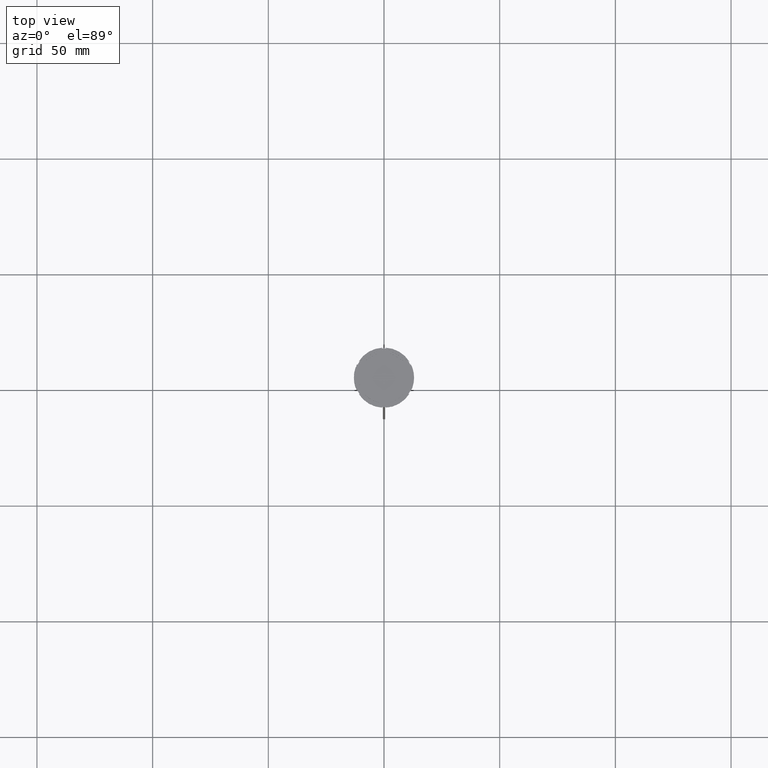
[diagram: clean part render]
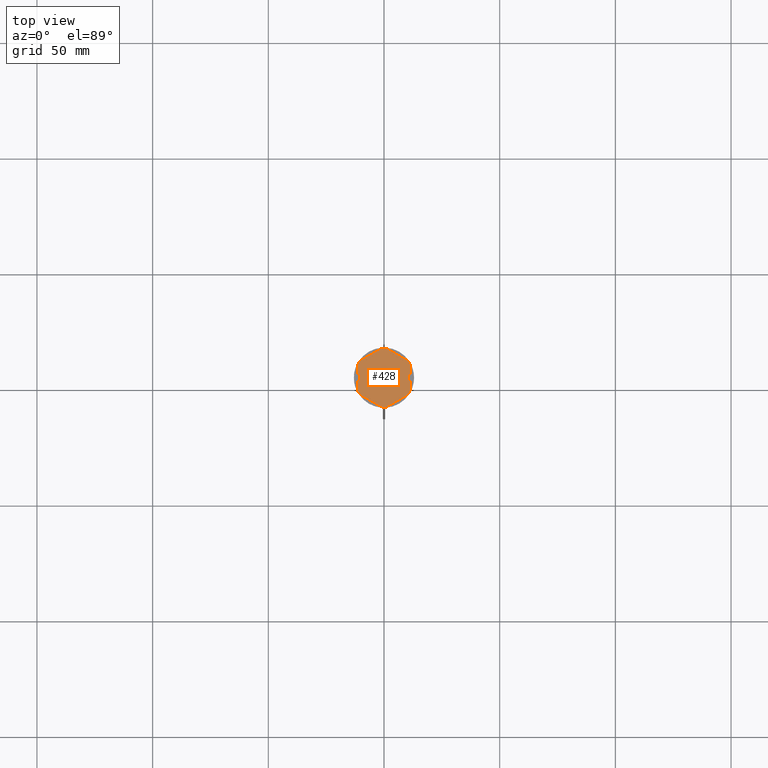
[diagram: same view with one face highlighted and labeled with its STEP entity id]
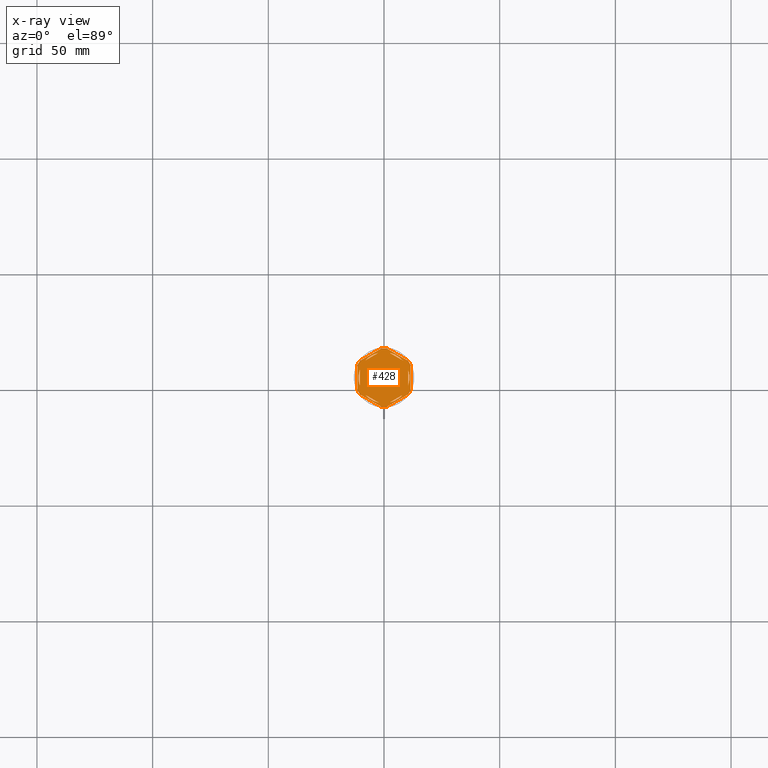
[diagram: x-ray of the same camera — body ghosted, the highlighted face saturated]
A machine part, top view. The second image highlights one B-rep face of the part: STEP entity #428.
The next image is the same camera in x-ray: the body ghosted, the highlighted face saturated — about 0% of this face is hidden behind the body in this view.
In plain terms, the highlighted planar face has unit normal (0, 0, 1).
Its self-contained STEP definition (entity closure, byte-faithful):
#3 = VECTOR ( 'NONE', #1508, 1000.000000000000000 ) ;
#47 = DIRECTION ( 'NONE',  ( 1.000000000000000000, 0.000000000000000000, 0.000000000000000000 ) ) ;
#53 = EDGE_CURVE ( 'NONE', #2732, #2321, #2658, .T. ) ;
#56 = CARTESIAN_POINT ( 'NONE',  ( 11.49999999999999822, -6.639528095680694797, -1.000000000000000000 ) ) ;
#63 = CIRCLE ( 'NONE', #1976, 12.69999999999999929 ) ;
#65 = CARTESIAN_POINT ( 'NONE',  ( 10.49999999999999467, 3.278719262151012170, -1.000000000000000888 ) ) ;
#88 = CARTESIAN_POINT ( 'NONE',  ( 1.083095244168774673, -12.65373086058253982, -1.000000000000000000 ) ) ;
#92 = CARTESIAN_POINT ( 'NONE',  ( 0.000000000000000000, 0.000000000000000000, -1.000000000000000000 ) ) ;
#107 = VERTEX_POINT ( 'NONE', #1549 ) ;
#109 = CIRCLE ( 'NONE', #1291, 11.00000000000000000 ) ;
#111 = CIRCLE ( 'NONE', #359, 11.00000000000000000 ) ;
#129 = EDGE_CURVE ( 'NONE', #1032, #1472, #464, .T. ) ;
#134 = ORIENTED_EDGE ( 'NONE', *, *, #2264, .T. ) ;
#136 = CARTESIAN_POINT ( 'NONE',  ( 0.000000000000000000, 0.000000000000000000, -1.000000000000000000 ) ) ;
#143 = PLANE ( 'NONE',  #2436 ) ;
#147 = CARTESIAN_POINT ( 'NONE',  ( 0.000000000000000000, 0.000000000000000000, -1.000000000000000000 ) ) ;
#204 = VERTEX_POINT ( 'NONE', #2258 ) ;
#215 = VERTEX_POINT ( 'NONE', #2228 ) ;
#219 = DIRECTION ( 'NONE',  ( -0.8660254037844387076, -0.4999999999999999445, 0.000000000000000000 ) ) ;
#230 = CARTESIAN_POINT ( 'NONE',  ( 11.49999999999999822, -5.388877434122996135, -1.000000000000000000 ) ) ;
#231 = VERTEX_POINT ( 'NONE', #508 ) ;
#237 = VECTOR ( 'NONE', #705, 999.9999999999998863 ) ;
#245 = CIRCLE ( 'NONE', #1647, 12.69999999999999929 ) ;
#267 = CARTESIAN_POINT ( 'NONE',  ( 0.000000000000000000, 0.000000000000000000, -1.000000000000000000 ) ) ;
#284 = DIRECTION ( 'NONE',  ( 0.000000000000000000, 0.000000000000000000, 1.000000000000000000 ) ) ;
#285 = EDGE_LOOP ( 'NONE', ( #2693, #450 ) ) ;
#313 = DIRECTION ( 'NONE',  ( -1.430775808321104180E-16, -1.000000000000000000, 0.000000000000000000 ) ) ;
#329 = CARTESIAN_POINT ( 'NONE',  ( -11.50000000000000000, 6.639528095680691244, -1.000000000000000000 ) ) ;
#339 = DIRECTION ( 'NONE',  ( -0.000000000000000000, -0.000000000000000000, -1.000000000000000000 ) ) ;
#359 = AXIS2_PLACEMENT_3D ( 'NONE', #136, #2595, #2137 ) ;
#366 = VERTEX_POINT ( 'NONE', #88 ) ;
#392 = EDGE_CURVE ( 'NONE', #366, #620, #1044, .T. ) ;
#401 = CARTESIAN_POINT ( 'NONE',  ( -10.41690475583121334, -7.264853426459548125, -1.000000000000000000 ) ) ;
#408 = CARTESIAN_POINT ( 'NONE',  ( 0.000000000000000000, 0.000000000000000000, -1.000000000000000000 ) ) ;
#422 = DIRECTION ( 'NONE',  ( -0.000000000000000000, -0.000000000000000000, -1.000000000000000000 ) ) ;
#428 = ADVANCED_FACE ( 'NONE', ( #1771, #2656, #2433, #1272, #1490, #638, #1531 ), #143, .T. ) ;
#450 = ORIENTED_EDGE ( 'NONE', *, *, #1066, .F. ) ;
#460 = EDGE_LOOP ( 'NONE', ( #2573, #505 ) ) ;
#464 = LINE ( 'NONE', #2242, #237 ) ;
#471 = ORIENTED_EDGE ( 'NONE', *, *, #53, .F. ) ;
#478 = EDGE_CURVE ( 'NONE', #366, #215, #2249, .T. ) ;
#501 = EDGE_CURVE ( 'NONE', #565, #620, #1839, .T. ) ;
#505 = ORIENTED_EDGE ( 'NONE', *, *, #129, .F. ) ;
#508 = CARTESIAN_POINT ( 'NONE',  ( -11.00000000000000000, 0.000000000000000000, -1.000000000000000000 ) ) ;
#511 = ORIENTED_EDGE ( 'NONE', *, *, #752, .T. ) ;
#565 = VERTEX_POINT ( 'NONE', #230 ) ;
#620 = VERTEX_POINT ( 'NONE', #2097 ) ;
#632 = AXIS2_PLACEMENT_3D ( 'NONE', #408, #661, #1544 ) ;
#638 = FACE_BOUND ( 'NONE', #1212, .T. ) ;
#651 = DIRECTION ( 'NONE',  ( 0.000000000000000000, 0.000000000000000000, 1.000000000000000000 ) ) ;
#655 = EDGE_CURVE ( 'NONE', #2499, #2364, #109, .T. ) ;
#661 = DIRECTION ( 'NONE',  ( -0.000000000000000000, -0.000000000000000000, -1.000000000000000000 ) ) ;
#682 = ORIENTED_EDGE ( 'NONE', *, *, #2134, .F. ) ;
#689 = VERTEX_POINT ( 'NONE', #2769 ) ;
#694 = DIRECTION ( 'NONE',  ( -0.8660254037844385966, -0.5000000000000001110, 0.000000000000000000 ) ) ;
#705 = DIRECTION ( 'NONE',  ( 0.8660254037844387076, -0.4999999999999999445, 0.000000000000000000 ) ) ;
#728 = ORIENTED_EDGE ( 'NONE', *, *, #916, .F. ) ;
#744 = CARTESIAN_POINT ( 'NONE',  ( -11.50000000000000000, -5.388877434122992582, -1.000000000000000000 ) ) ;
#745 = ORIENTED_EDGE ( 'NONE', *, *, #392, .T. ) ;
#752 = EDGE_CURVE ( 'NONE', #107, #924, #2380, .T. ) ;
#764 = VERTEX_POINT ( 'NONE', #401 ) ;
#770 = VECTOR ( 'NONE', #1124, 1000.000000000000000 ) ;
#787 = DIRECTION ( 'NONE',  ( 1.000000000000000000, 7.105427357601001859E-15, 0.000000000000000000 ) ) ;
#797 = ORIENTED_EDGE ( 'NONE', *, *, #2042, .F. ) ;
#812 = CARTESIAN_POINT ( 'NONE',  ( 11.50000000000000000, 6.639528095680698350, -1.000000000000000000 ) ) ;
#818 = CARTESIAN_POINT ( 'NONE',  ( 5.612359739892467248E-18, -13.27905619136138959, -1.000000000000000000 ) ) ;
#832 = AXIS2_PLACEMENT_3D ( 'NONE', #2174, #1529, #2185 ) ;
#872 = CIRCLE ( 'NONE', #2345, 11.00000000000000000 ) ;
#892 = DIRECTION ( 'NONE',  ( 0.000000000000000000, 0.000000000000000000, 1.000000000000000000 ) ) ;
#897 = EDGE_CURVE ( 'NONE', #2321, #2732, #872, .T. ) ;
#904 = DIRECTION ( 'NONE',  ( 1.000000000000000000, 0.000000000000000000, 0.000000000000000000 ) ) ;
#911 = ORIENTED_EDGE ( 'NONE', *, *, #1446, .F. ) ;
#912 = AXIS2_PLACEMENT_3D ( 'NONE', #2880, #892, #904 ) ;
#916 = EDGE_CURVE ( 'NONE', #764, #1261, #1015, .T. ) ;
#922 = VECTOR ( 'NONE', #2034, 1000.000000000000227 ) ;
#924 = VERTEX_POINT ( 'NONE', #2552 ) ;
#949 = DIRECTION ( 'NONE',  ( 1.306360520641008153E-16, 1.000000000000000000, 0.000000000000000000 ) ) ;
#979 = CARTESIAN_POINT ( 'NONE',  ( -10.49999999999999822, 6.062177826491068622, -1.000000000000000888 ) ) ;
#980 = DIRECTION ( 'NONE',  ( 0.000000000000000000, 0.000000000000000000, 1.000000000000000000 ) ) ;
#992 = EDGE_LOOP ( 'NONE', ( #2262, #2500, #511, #797, #1097, #911, #2014, #728, #134, #1280, #745, #2819 ) ) ;
#1015 = CIRCLE ( 'NONE', #2335, 12.69999999999999929 ) ;
#1032 = VERTEX_POINT ( 'NONE', #2559 ) ;
#1044 = LINE ( 'NONE', #818, #1109 ) ;
#1050 = DIRECTION ( 'NONE',  ( 0.000000000000000000, -1.000000000000000000, 0.000000000000000000 ) ) ;
#1053 = VERTEX_POINT ( 'NONE', #2657 ) ;
#1054 = VECTOR ( 'NONE', #1050, 1000.000000000000000 ) ;
#1062 = AXIS2_PLACEMENT_3D ( 'NONE', #2404, #422, #2188 ) ;
#1066 = EDGE_CURVE ( 'NONE', #2364, #2499, #1341, .T. ) ;
#1097 = ORIENTED_EDGE ( 'NONE', *, *, #1898, .T. ) ;
#1109 = VECTOR ( 'NONE', #1671, 1000.000000000000114 ) ;
#1122 = VERTEX_POINT ( 'NONE', #2215 ) ;
#1124 = DIRECTION ( 'NONE',  ( 0.000000000000000000, 1.000000000000000000, 0.000000000000000000 ) ) ;
#1149 = CIRCLE ( 'NONE', #1194, 12.69999999999999929 ) ;
#1160 = LINE ( 'NONE', #1347, #1339 ) ;
#1162 = DIRECTION ( 'NONE',  ( -0.000000000000000000, -0.000000000000000000, -1.000000000000000000 ) ) ;
#1169 = DIRECTION ( 'NONE',  ( -0.000000000000000000, -0.000000000000000000, -1.000000000000000000 ) ) ;
#1170 = LINE ( 'NONE', #2295, #1409 ) ;
#1175 = EDGE_CURVE ( 'NONE', #1053, #1261, #2384, .T. ) ;
#1184 = DIRECTION ( 'NONE',  ( 1.000000000000000000, -1.776356839400250465E-14, 0.000000000000000000 ) ) ;
#1192 = VECTOR ( 'NONE', #694, 1000.000000000000114 ) ;
#1194 = AXIS2_PLACEMENT_3D ( 'NONE', #92, #339, #2720 ) ;
#1212 = EDGE_LOOP ( 'NONE', ( #2389, #1423 ) ) ;
#1261 = VERTEX_POINT ( 'NONE', #744 ) ;
#1269 = CARTESIAN_POINT ( 'NONE',  ( 0.000000000000000000, 0.000000000000000000, -1.000000000000000000 ) ) ;
#1272 = FACE_BOUND ( 'NONE', #1599, .T. ) ;
#1280 = ORIENTED_EDGE ( 'NONE', *, *, #478, .F. ) ;
#1291 = AXIS2_PLACEMENT_3D ( 'NONE', #2314, #980, #47 ) ;
#1297 = CIRCLE ( 'NONE', #832, 11.00000000000000000 ) ;
#1319 = ORIENTED_EDGE ( 'NONE', *, *, #897, .F. ) ;
#1334 = CIRCLE ( 'NONE', #2675, 11.00000000000000000 ) ;
#1339 = VECTOR ( 'NONE', #1783, 1000.000000000000000 ) ;
#1341 = LINE ( 'NONE', #2219, #2122 ) ;
#1347 = CARTESIAN_POINT ( 'NONE',  ( -1.734723475976807094E-15, 12.12435565298214080, -1.000000000000000888 ) ) ;
#1350 = EDGE_CURVE ( 'NONE', #1122, #1767, #2447, .T. ) ;
#1355 = EDGE_CURVE ( 'NONE', #1472, #1032, #2708, .T. ) ;
#1378 = LINE ( 'NONE', #56, #2435 ) ;
#1395 = EDGE_CURVE ( 'NONE', #2028, #1492, #1170, .T. ) ;
#1401 = CARTESIAN_POINT ( 'NONE',  ( 0.000000000000000000, 0.000000000000000000, -1.000000000000000000 ) ) ;
#1409 = VECTOR ( 'NONE', #313, 1000.000000000000000 ) ;
#1423 = ORIENTED_EDGE ( 'NONE', *, *, #2651, .F. ) ;
#1428 = ORIENTED_EDGE ( 'NONE', *, *, #1395, .F. ) ;
#1446 = EDGE_CURVE ( 'NONE', #1053, #2283, #245, .T. ) ;
#1451 = DIRECTION ( 'NONE',  ( -0.8660254037844388186, 0.4999999999999997224, 0.000000000000000000 ) ) ;
#1472 = VERTEX_POINT ( 'NONE', #2386 ) ;
#1475 = DIRECTION ( 'NONE',  ( 1.000000000000000000, 0.000000000000000000, 0.000000000000000000 ) ) ;
#1487 = DIRECTION ( 'NONE',  ( -0.000000000000000000, -0.000000000000000000, -1.000000000000000000 ) ) ;
#1490 = FACE_BOUND ( 'NONE', #2128, .T. ) ;
#1492 = VERTEX_POINT ( 'NONE', #2102 ) ;
#1508 = DIRECTION ( 'NONE',  ( -0.8660254037844384856, 0.5000000000000002220, 0.000000000000000000 ) ) ;
#1529 = DIRECTION ( 'NONE',  ( 0.000000000000000000, 0.000000000000000000, 1.000000000000000000 ) ) ;
#1531 = FACE_OUTER_BOUND ( 'NONE', #992, .T. ) ;
#1535 = CARTESIAN_POINT ( 'NONE',  ( -11.50000000000000000, -6.639528095680696573, -1.000000000000000000 ) ) ;
#1544 = DIRECTION ( 'NONE',  ( 1.000000000000000000, 0.000000000000000000, 0.000000000000000000 ) ) ;
#1549 = CARTESIAN_POINT ( 'NONE',  ( 10.41690475583121156, 7.264853426459550789, -1.000000000000000000 ) ) ;
#1568 = CARTESIAN_POINT ( 'NONE',  ( 0.000000000000000000, 0.000000000000000000, -1.000000000000000000 ) ) ;
#1599 = EDGE_LOOP ( 'NONE', ( #1319, #471 ) ) ;
#1647 = AXIS2_PLACEMENT_3D ( 'NONE', #1269, #1487, #1475 ) ;
#1671 = DIRECTION ( 'NONE',  ( 0.8660254037844385966, 0.4999999999999999445, 0.000000000000000000 ) ) ;
#1676 = CARTESIAN_POINT ( 'NONE',  ( 0.000000000000000000, 0.000000000000000000, -1.000000000000000000 ) ) ;
#1678 = EDGE_LOOP ( 'NONE', ( #682, #1428 ) ) ;
#1700 = AXIS2_PLACEMENT_3D ( 'NONE', #147, #1730, #2618 ) ;
#1730 = DIRECTION ( 'NONE',  ( 0.000000000000000000, 0.000000000000000000, 1.000000000000000000 ) ) ;
#1734 = VERTEX_POINT ( 'NONE', #2593 ) ;
#1767 = VERTEX_POINT ( 'NONE', #2334 ) ;
#1771 = FACE_BOUND ( 'NONE', #460, .T. ) ;
#1783 = DIRECTION ( 'NONE',  ( 0.8660254037844385966, 0.5000000000000001110, -0.000000000000000000 ) ) ;
#1799 = ORIENTED_EDGE ( 'NONE', *, *, #2201, .F. ) ;
#1827 = LINE ( 'NONE', #2496, #1192 ) ;
#1839 = CIRCLE ( 'NONE', #1062, 12.69999999999999929 ) ;
#1844 = ORIENTED_EDGE ( 'NONE', *, *, #1350, .F. ) ;
#1849 = DIRECTION ( 'NONE',  ( 1.000000000000000000, 0.000000000000000000, 0.000000000000000000 ) ) ;
#1887 = EDGE_CURVE ( 'NONE', #565, #2599, #1378, .T. ) ;
#1898 = EDGE_CURVE ( 'NONE', #204, #2283, #1827, .T. ) ;
#1973 = VECTOR ( 'NONE', #1451, 1000.000000000000000 ) ;
#1976 = AXIS2_PLACEMENT_3D ( 'NONE', #1676, #1169, #1184 ) ;
#1978 = CARTESIAN_POINT ( 'NONE',  ( 8.089454172900135021, -7.453907108661109504, -1.000000000000000888 ) ) ;
#2014 = ORIENTED_EDGE ( 'NONE', *, *, #1175, .T. ) ;
#2028 = VERTEX_POINT ( 'NONE', #65 ) ;
#2034 = DIRECTION ( 'NONE',  ( 0.8660254037844387076, -0.4999999999999997780, 0.000000000000000000 ) ) ;
#2042 = EDGE_CURVE ( 'NONE', #204, #924, #1149, .T. ) ;
#2097 = CARTESIAN_POINT ( 'NONE',  ( 10.41690475583121867, -7.264853426459537467, -1.000000000000000000 ) ) ;
#2102 = CARTESIAN_POINT ( 'NONE',  ( 10.49999999999999467, -3.278719262151014835, -1.000000000000000888 ) ) ;
#2117 = EDGE_CURVE ( 'NONE', #107, #2599, #63, .T. ) ;
#2122 = VECTOR ( 'NONE', #219, 999.9999999999998863 ) ;
#2128 = EDGE_LOOP ( 'NONE', ( #1799, #1844, #2763 ) ) ;
#2134 = EDGE_CURVE ( 'NONE', #1492, #2028, #111, .T. ) ;
#2137 = DIRECTION ( 'NONE',  ( 1.000000000000000000, 0.000000000000000000, 0.000000000000000000 ) ) ;
#2163 = CARTESIAN_POINT ( 'NONE',  ( 0.000000000000000000, 0.000000000000000000, -1.000000000000000000 ) ) ;
#2174 = CARTESIAN_POINT ( 'NONE',  ( 0.000000000000000000, 0.000000000000000000, -1.000000000000000000 ) ) ;
#2185 = DIRECTION ( 'NONE',  ( 1.000000000000000000, 0.000000000000000000, 0.000000000000000000 ) ) ;
#2188 = DIRECTION ( 'NONE',  ( 1.000000000000000000, 0.000000000000000000, 0.000000000000000000 ) ) ;
#2200 = DIRECTION ( 'NONE',  ( 1.000000000000000000, 0.000000000000000000, -0.000000000000000000 ) ) ;
#2201 = EDGE_CURVE ( 'NONE', #1767, #231, #2439, .T. ) ;
#2215 = CARTESIAN_POINT ( 'NONE',  ( -10.49999999999999822, -3.278719262151000624, -1.000000000000000888 ) ) ;
#2219 = CARTESIAN_POINT ( 'NONE',  ( -2.602085213965210642E-15, -12.12435565298214080, -1.000000000000000888 ) ) ;
#2228 = CARTESIAN_POINT ( 'NONE',  ( -1.083095244168779780, -12.65373086058253982, -1.000000000000000000 ) ) ;
#2231 = CARTESIAN_POINT ( 'NONE',  ( -10.41690475583121689, 7.264853426459546348, -1.000000000000000000 ) ) ;
#2242 = CARTESIAN_POINT ( 'NONE',  ( 10.49999999999999467, 6.062177826491072175, -1.000000000000000888 ) ) ;
#2249 = CIRCLE ( 'NONE', #632, 12.69999999999999929 ) ;
#2255 = CARTESIAN_POINT ( 'NONE',  ( -2.410545827099876082, -10.73262637081210435, -1.000000000000000888 ) ) ;
#2258 = CARTESIAN_POINT ( 'NONE',  ( -1.083095244168783333, 12.65373086058254160, -1.000000000000000000 ) ) ;
#2262 = ORIENTED_EDGE ( 'NONE', *, *, #1887, .T. ) ;
#2264 = EDGE_CURVE ( 'NONE', #764, #215, #2440, .T. ) ;
#2283 = VERTEX_POINT ( 'NONE', #2231 ) ;
#2295 = CARTESIAN_POINT ( 'NONE',  ( 10.49999999999999289, -6.062177826491073063, -1.000000000000000888 ) ) ;
#2314 = CARTESIAN_POINT ( 'NONE',  ( 0.000000000000000000, 0.000000000000000000, -1.000000000000000000 ) ) ;
#2321 = VERTEX_POINT ( 'NONE', #2659 ) ;
#2334 = CARTESIAN_POINT ( 'NONE',  ( -10.49999999999999822, 3.278719262151000624, -1.000000000000000888 ) ) ;
#2335 = AXIS2_PLACEMENT_3D ( 'NONE', #267, #1162, #787 ) ;
#2345 = AXIS2_PLACEMENT_3D ( 'NONE', #1568, #651, #2451 ) ;
#2359 = CARTESIAN_POINT ( 'NONE',  ( 2.410545827099865868, -10.73262637081210791, -1.000000000000000888 ) ) ;
#2364 = VERTEX_POINT ( 'NONE', #1978 ) ;
#2374 = DIRECTION ( 'NONE',  ( 0.000000000000000000, 0.000000000000000000, 1.000000000000000000 ) ) ;
#2380 = LINE ( 'NONE', #812, #1973 ) ;
#2384 = LINE ( 'NONE', #329, #1054 ) ;
#2386 = CARTESIAN_POINT ( 'NONE',  ( 8.089454172900138573, 7.453907108661105063, -1.000000000000000888 ) ) ;
#2389 = ORIENTED_EDGE ( 'NONE', *, *, #2431, .F. ) ;
#2404 = CARTESIAN_POINT ( 'NONE',  ( 0.000000000000000000, 0.000000000000000000, -1.000000000000000000 ) ) ;
#2431 = EDGE_CURVE ( 'NONE', #1734, #689, #1334, .T. ) ;
#2433 = FACE_BOUND ( 'NONE', #285, .T. ) ;
#2435 = VECTOR ( 'NONE', #949, 1000.000000000000000 ) ;
#2436 = AXIS2_PLACEMENT_3D ( 'NONE', #2163, #2374, #2200 ) ;
#2439 = CIRCLE ( 'NONE', #1700, 11.00000000000000000 ) ;
#2440 = LINE ( 'NONE', #1535, #922 ) ;
#2447 = LINE ( 'NONE', #979, #770 ) ;
#2451 = DIRECTION ( 'NONE',  ( 1.000000000000000000, 0.000000000000000000, 0.000000000000000000 ) ) ;
#2496 = CARTESIAN_POINT ( 'NONE',  ( 0.000000000000000000, 13.27905619136138959, -1.000000000000000000 ) ) ;
#2499 = VERTEX_POINT ( 'NONE', #2359 ) ;
#2500 = ORIENTED_EDGE ( 'NONE', *, *, #2117, .F. ) ;
#2528 = EDGE_CURVE ( 'NONE', #231, #1122, #1297, .T. ) ;
#2552 = CARTESIAN_POINT ( 'NONE',  ( 1.083095244168781557, 12.65373086058254160, -1.000000000000000000 ) ) ;
#2559 = CARTESIAN_POINT ( 'NONE',  ( 2.410545827099861871, 10.73262637081210791, -1.000000000000000888 ) ) ;
#2573 = ORIENTED_EDGE ( 'NONE', *, *, #1355, .F. ) ;
#2593 = CARTESIAN_POINT ( 'NONE',  ( -2.410545827099867200, 10.73262637081210613, -1.000000000000000888 ) ) ;
#2595 = DIRECTION ( 'NONE',  ( 0.000000000000000000, 0.000000000000000000, 1.000000000000000000 ) ) ;
#2599 = VERTEX_POINT ( 'NONE', #2837 ) ;
#2618 = DIRECTION ( 'NONE',  ( 1.000000000000000000, 0.000000000000000000, 0.000000000000000000 ) ) ;
#2651 = EDGE_CURVE ( 'NONE', #689, #1734, #1160, .T. ) ;
#2656 = FACE_BOUND ( 'NONE', #1678, .T. ) ;
#2657 = CARTESIAN_POINT ( 'NONE',  ( -11.50000000000000000, 5.388877434122992582, -1.000000000000000000 ) ) ;
#2658 = LINE ( 'NONE', #2841, #3 ) ;
#2659 = CARTESIAN_POINT ( 'NONE',  ( -8.089454172900133244, -7.453907108661111280, -1.000000000000000888 ) ) ;
#2675 = AXIS2_PLACEMENT_3D ( 'NONE', #1401, #284, #1849 ) ;
#2693 = ORIENTED_EDGE ( 'NONE', *, *, #655, .F. ) ;
#2708 = CIRCLE ( 'NONE', #912, 11.00000000000000000 ) ;
#2720 = DIRECTION ( 'NONE',  ( 1.000000000000000000, 1.243449787580175325E-14, 0.000000000000000000 ) ) ;
#2732 = VERTEX_POINT ( 'NONE', #2255 ) ;
#2763 = ORIENTED_EDGE ( 'NONE', *, *, #2528, .F. ) ;
#2769 = CARTESIAN_POINT ( 'NONE',  ( -8.089454172900135021, 7.453907108661106840, -1.000000000000000888 ) ) ;
#2819 = ORIENTED_EDGE ( 'NONE', *, *, #501, .F. ) ;
#2837 = CARTESIAN_POINT ( 'NONE',  ( 11.49999999999999822, 5.388877434122992582, -1.000000000000000000 ) ) ;
#2841 = CARTESIAN_POINT ( 'NONE',  ( -10.49999999999999822, -6.062177826491068622, -1.000000000000000888 ) ) ;
#2880 = CARTESIAN_POINT ( 'NONE',  ( 0.000000000000000000, 0.000000000000000000, -1.000000000000000000 ) ) ;